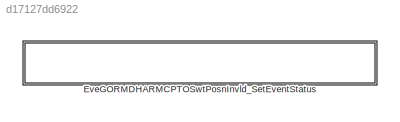
MODEL slx_d17127dd6922
KIND model
CONFIG AbsTol = auto
CONFIG EnableMultiTasking = off
CONFIG FixedStep = auto
CONFIG MaxStep = auto
CONFIG MinStep = auto
CONFIG RelTol = 1e-3
CONFIG SampleTimeConstraint = Unconstrained
CONFIG Solver = VariableStepAuto
CONFIG SolverName = VariableStepAuto
CONFIG StartTime = 0.0
CONFIG StopTime = 10.0
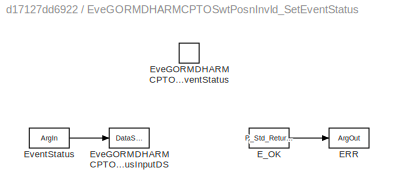
BLOCK [SubSystem] EveGORMDHARMCPTOSwtPosnInvld_SetEventStatus
  Ports = [0, 0, 0, 1]
  RequestExecContextInheritance = off
  TreatAsAtomicUnit = on
  Variant = off
BLOCK [ArgOut] EveGORMDHARMCPTOSwtPosnInvld_SetEventStatus/ERR
  ArgumentName = ERR
  DisableCoverage = on
  OutDataTypeStr = Std_ReturnType
BLOCK [Constant] EveGORMDHARMCPTOSwtPosnInvld_SetEventStatus/E_OK
  Value = P_Std_ReturnType
BLOCK [DataStoreWrite] EveGORMDHARMCPTOSwtPosnInvld_SetEventStatus/EveGORMDHARMCPTOSwtPosnInvld_EventStatusInputDS
  DataStoreName = EveGORMDHARMCPTOSwtPosnInvld_EventStatusInputDS
  Ports = [1]
BLOCK [TriggerPort] EveGORMDHARMCPTOSwtPosnInvld_SetEventStatus/EveGORMDHARMCPTOSwtPosnInvld_SetEventStatus
  FunctionName = EveGORMDHARMCPTOSwtPosnInvld_SetEventStatus
  IsSimulinkFunction = on
  Ports = []
  StatesWhenEnabling = held
  TriggerType = function-call
  VariantControl = (inherit)
BLOCK [ArgIn] EveGORMDHARMCPTOSwtPosnInvld_SetEventStatus/EventStatus
  ArgumentName = EventStatus
  DisableCoverage = on
  OutDataTypeStr = Enum: Dem_EventStatusType
LINE EveGORMDHARMCPTOSwtPosnInvld_SetEventStatus/E_OK:1 -> EveGORMDHARMCPTOSwtPosnInvld_SetEventStatus/ERR:1
LINE EveGORMDHARMCPTOSwtPosnInvld_SetEventStatus/EventStatus:1 -> EveGORMDHARMCPTOSwtPosnInvld_SetEventStatus/EveGORMDHARMCPTOSwtPosnInvld_EventStatusInputDS:1
